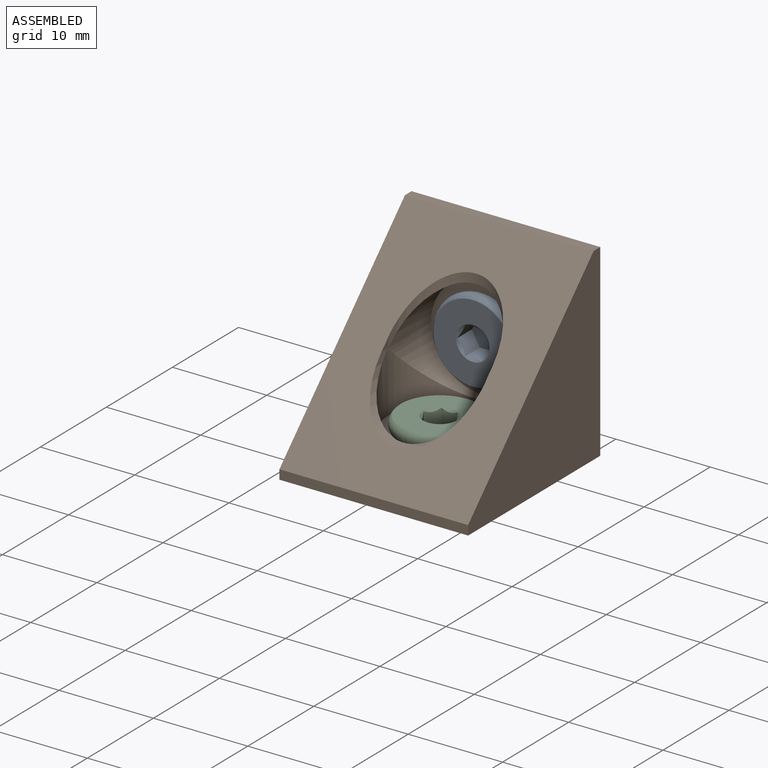
[diagram: assembled view]
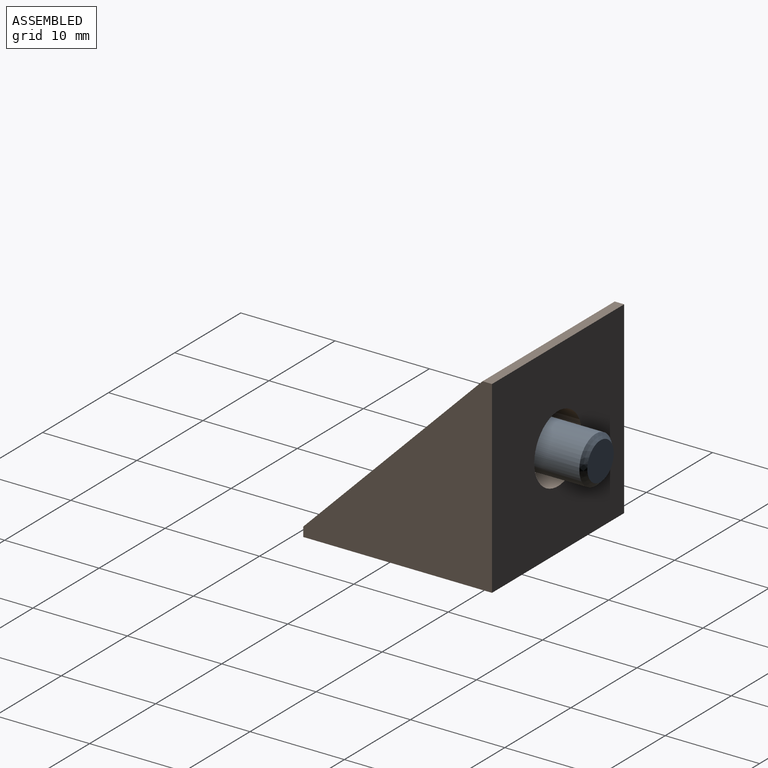
[diagram: assembled view, second angle]
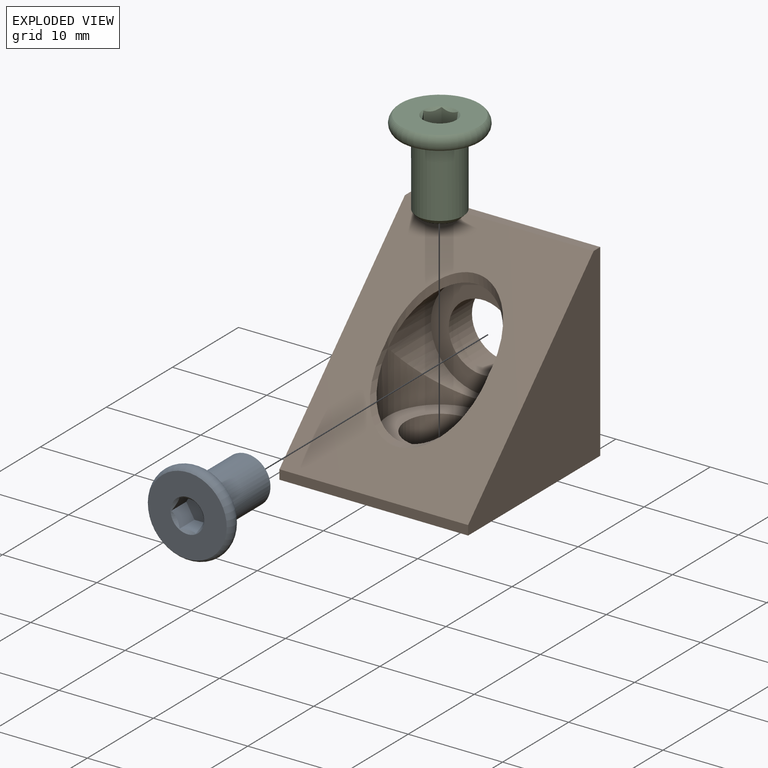
[diagram: exploded view]
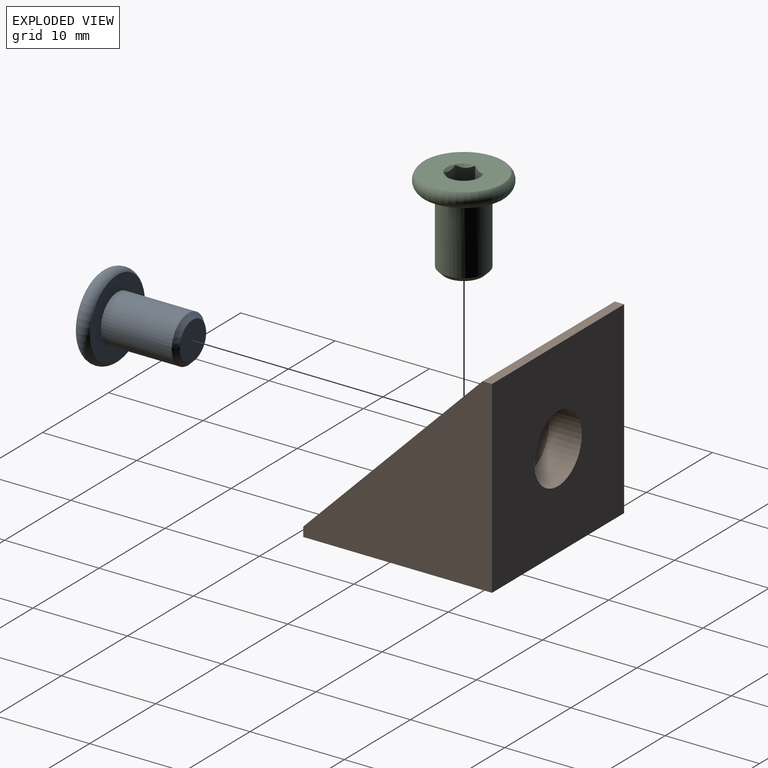
[diagram: exploded view, second angle]
ASSEMBLY  parts=3 mates=2
PART A: 14 faces, bbox 9.8x9.7x9.7 mm
  f0: cone r=1.78mm half-angle=45deg, axis (-1,0,0), area 3.1mm2, adj f5,f8,f9,f10,f11,f12,f13
  f1: torus R=3.5mm, axis (1,0,0), area 46.7mm2, adj f5,f6
  f2: cone r=2mm half-angle=45deg, axis (-1,0,0), area 10mm2, adj f3,f4
  f3: cylinder r=2.5mm len=7.5mm, axis (1,0,0), area 117.8mm2, adj f2,f6
  f4: plane 4x4mm, normal (1,0,0), area 12.6mm2, adj f2
  f5: plane 8.32x8.32mm, normal (-1,0,0), area 44.4mm2, adj f0,f1
  f6: plane 8.32x8.32mm, normal (1,0,0), area 34.8mm2, adj f1,f3
  f7: plane 3.46x3mm, normal (-1,0,0), area 7.8mm2, adj f8,f9,f10,f11,f12,f13
  f8: plane 2.25x1.5mm, normal (0,-0.87,0.5), area 3.6mm2, adj f0,f7,f9,f13
  f9: plane 2.25x1.73mm, normal (0,0,1), area 3.6mm2, adj f0,f7,f8,f10
  f10: plane 2.25x1.5mm, normal (0,0.87,0.5), area 3.6mm2, adj f0,f7,f9,f11
  f11: plane 2.25x1.5mm, normal (0,0.87,-0.5), area 3.6mm2, adj f0,f7,f10,f12
  f12: plane 2.25x1.73mm, normal (0,0,-1), area 3.6mm2, adj f0,f7,f11,f13
  f13: plane 2.25x1.5mm, normal (0,-0.87,-0.5), area 3.6mm2, adj f0,f7,f8,f12
PART B: 15 faces, bbox 20x20x20 mm
  f0: cylinder r=5.5mm len=11mm, axis (0,1,0), area 17.8mm2, adj f2,f5,f14
  f1: cylinder r=5.5mm len=11mm, axis (0,1,0), area 103.6mm2, adj f2,f5,f13
  f2: cylinder r=5.5mm len=11mm, axis (0,0,1), area 103.6mm2, adj f0,f1,f12
  f3: cylinder r=3.6mm len=7.2mm, axis (0,0,-1), area 79.2mm2, adj f7,f12
  f4: cylinder r=3.6mm len=7.2mm, axis (0,1,0), area 79.2mm2, adj f9,f13
  f5: cylinder r=5.5mm len=11mm, axis (0,0,1), area 17.8mm2, adj f0,f1,f14
  f6: plane 20x1mm, normal (0,0,1), area 20mm2, adj f8,f9,f10,f14
  f7: plane 20x20mm, normal (0,0,-1), area 359.3mm2, adj f3,f8,f9,f10,f11
  f8: plane 20x20mm, normal (-1,0,0), area 219.5mm2, adj f6,f7,f9,f11,f14
  f9: plane 20x20mm, normal (0,-1,0), area 359.3mm2, adj f4,f6,f7,f8,f10
  f10: plane 20x20mm, normal (1,0,0), area 219.5mm2, adj f6,f7,f9,f11,f14
  f11: plane 20x1mm, normal (0,1,0), area 20mm2, adj f7,f8,f10,f14
  f12: plane 11x11mm, normal (0,0,1), area 54.3mm2, adj f2,f3
  f13: plane 11x11mm, normal (0,1,0), area 54.3mm2, adj f1,f4
  f14: plane 20x19mm, normal (0,0.71,0.71), area 387.5mm2, adj f0,f5,f6,f8,f10,f11
PART C: same geometry as A
PLACE A rot(axis=(-0.71,-0.71,0),180deg) t=(-154.5,160,-6.9)mm
PLACE B rot(axis=(0,0,-1),180deg) t=(-154.5,145.5,-6.9)mm
PLACE C rot(axis=(-0.58,0.58,0.58),120deg) t=(-154.5,145.5,-21.4)mm
MATE fastened A.f2 <-> B.f4  axis (0,1,0) through (-154.5,152,-6.9)mm
MATE fastened C.f2 <-> B.f2  axis (0,0,-1) through (-154.5,145.5,-13.4)mm
